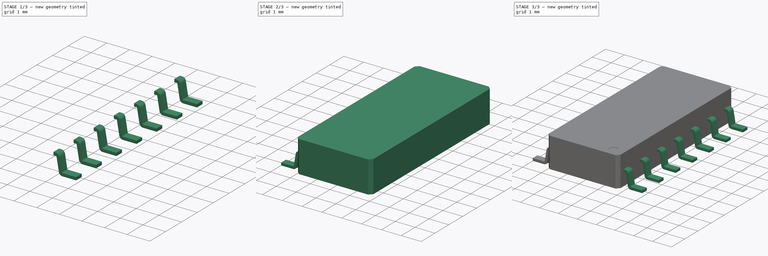
[diagram: build sequence overview — one tinted view per stage of 3, left to right]
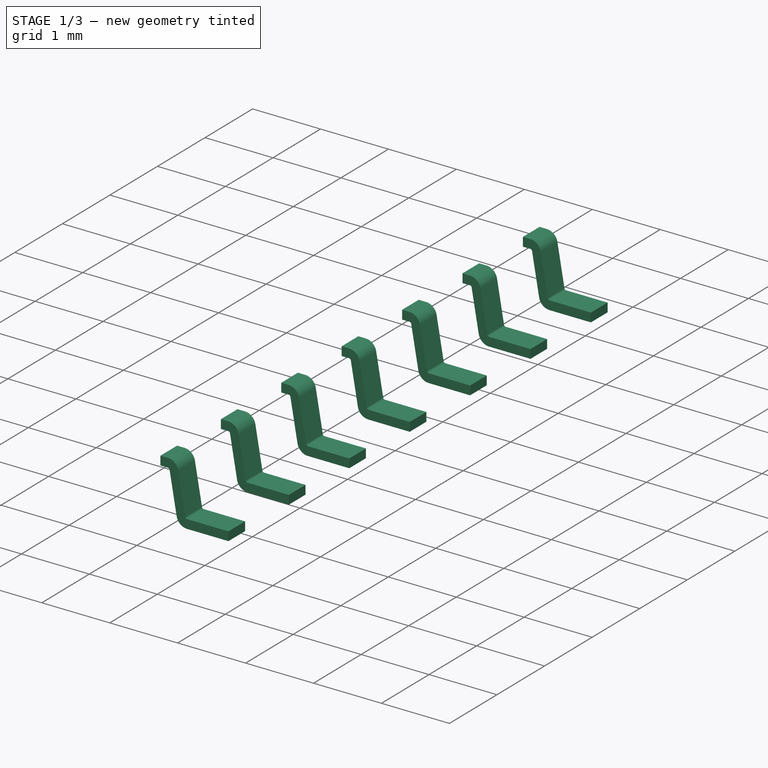
[diagram: stage 1 of 3 — iso view after this stage's code; geometry added in this stage tinted green]
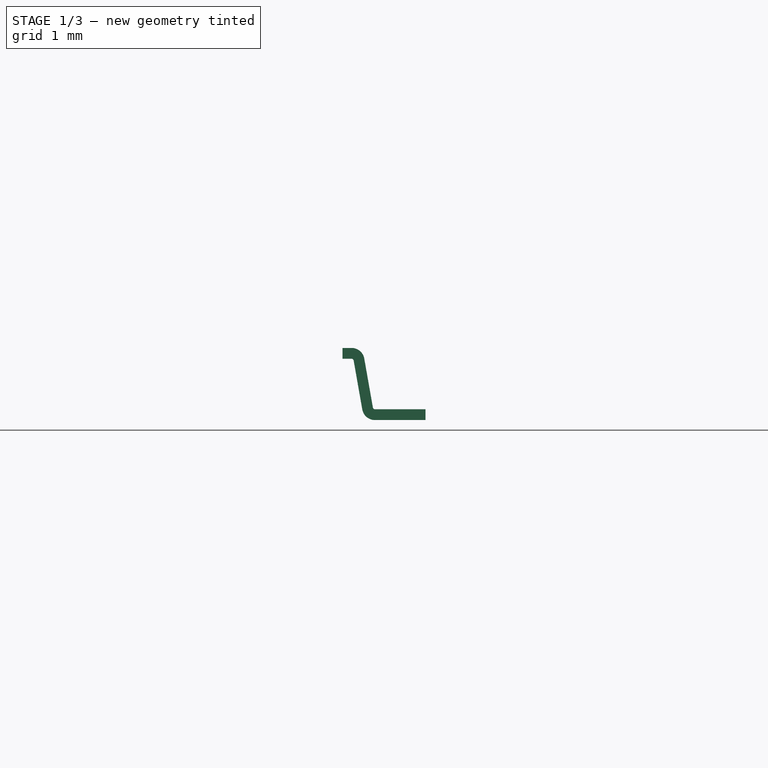
[diagram: stage 1 of 3 — front view after this stage's code; geometry added in this stage tinted green]
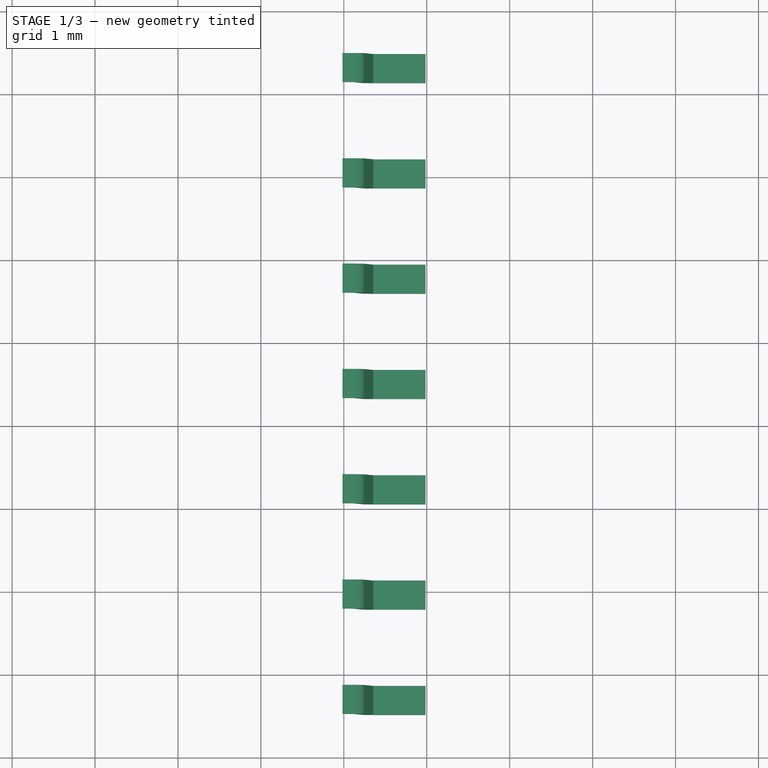
[diagram: stage 1 of 3 — top view after this stage's code; geometry added in this stage tinted green]
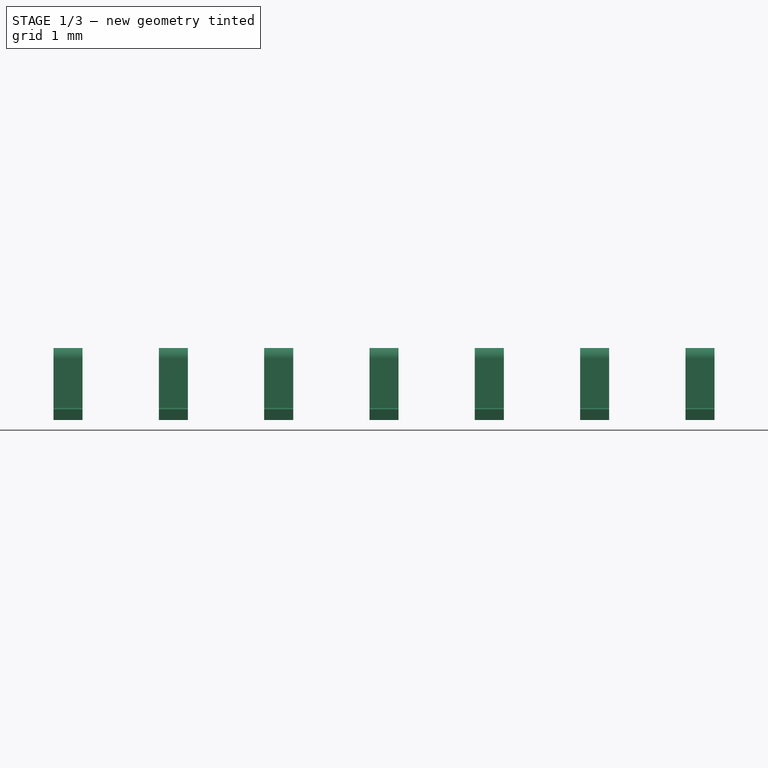
[diagram: stage 1 of 3 — right view after this stage's code; geometry added in this stage tinted green]
FCSTD DOCUMENT  (FreeCAD 0.16R6703 (Git))
Label: 14SOIC-N
License: CreativeCommons Attribution-ShareAlike
LicenseURL: http://creativecommons.org/licenses/by-sa/4.0/
objects: Sketcher::SketchObject×4, Part::FeaturePython×4, PartDesign::Pad×1, PartDesign::Pocket×1, Part::Sweep×1, App::DocumentObjectGroup×1, Part::MultiFuse×1, Part::Feature×1
note: 15 computed .brp shape members not serialized (recipe doc carries the construction recipe); baked Part::Feature solids carry a one-line shape summary decoded from their .brp

FEATURE [Sketcher::SketchObject] Sketch002  label="pin-path-sketch"
  Placement = pos=(0,0,0) rot=(1,0,0;1.5708rad)
  sketch-geometry (5):
    g0: LineSegment StartX=8.02 StartY=0.75 StartZ=0 EndX=8.13 EndY=0.75 EndZ=0
    g1: LineSegment StartX=8.21863 StartY=0.675628 StartZ=0 EndX=8.32282 EndY=0.0847437 EndZ=0
    g2: LineSegment StartX=8.41145 StartY=0.010372 StartZ=0 EndX=9.02145 EndY=0.010372 EndZ=0
    g3: ArcOfCircle CenterX=8.13 CenterY=0.66 CenterZ=0 NormalX=0 NormalY=0 NormalZ=1 Radius=0.09 StartAngle=0.174533 EndAngle=1.5708
    g4: ArcOfCircle CenterX=8.41145 CenterY=0.100372 CenterZ=0 NormalX=0 NormalY=0 NormalZ=1 Radius=0.09 StartAngle=3.31613 EndAngle=4.71239
  constraints (14):
    c: Horizontal(g0)
    c: Horizontal(g2)
    c: Tangent(g0,g3)
    c: Tangent(g1,g3)
    c: Tangent(g1,g4)
    c: Tangent(g2,g4)
    c: Angle(g0,g1) = 1.74533
    c: DistanceX(g-1,g0) = 8.02
    c: DistanceY(g-1,g0) = 0.75
    c: DistanceX(g0) = 0.11
    c: Radius(g3) = 0.09
    c: Equal(g4,g3)
    c: Distance(g1) = 0.6
    c: DistanceX(g2) = 0.61
FEATURE [Sketcher::SketchObject] Sketch003  label="pin-section-sketch"
  Placement = pos=(9.02145,0,0.010372) rot=(0.57735,0.57735,0.57735;2.0944rad)
  sketch-geometry (4):
    g0: LineSegment StartX=-0.175 StartY=0.065 StartZ=0 EndX=0.175 EndY=0.065 EndZ=0
    g1: LineSegment StartX=0.175 StartY=0.065 StartZ=0 EndX=0.175 EndY=-0.065 EndZ=0
    g2: LineSegment StartX=0.175 StartY=-0.065 StartZ=0 EndX=-0.175 EndY=-0.065 EndZ=0
    g3: LineSegment StartX=-0.175 StartY=-0.065 StartZ=0 EndX=-0.175 EndY=0.065 EndZ=0
  constraints (11):
    c: Coincident(g0,g1)
    c: Coincident(g1,g2)
    c: Coincident(g2,g3)
    c: Coincident(g3,g0)
    c: Horizontal(g0)
    c: Horizontal(g2)
    c: Vertical(g1)
    c: Vertical(g3)
    c: DistanceX(g0) = 0.35
    c: DistanceY(g3) = 0.13
    c: Symmetric(g0,g1,g-1)
FEATURE [Part::Sweep] Sweep  label="pin"
  Frenet = true
  Placement = pos=(0.00367852,1.69235,0) rot=(0,0,1;0rad)
  Sections = -> [Sketch003]
  Solid = true
  Spine = -> Sketch002
  Transition = 1
FEATURE [Part::FeaturePython] Array  label="pin-array-1-src"  # Draft array (typed FeaturePython)
  Angle = 360
  ArrayType = 0
  Axis = (0,0,1)
  Base = -> Sweep
  Center = (0,0,0)
  IntervalX = (1,0,0)
  IntervalY = (0,1.27,0)
  IntervalZ = (0,0,1)
  NumberPolar = 1
  NumberX = 1
  NumberY = 7
  NumberZ = 1
  Placement = pos=(-3.04,0,0) rot=(0,0,1;0rad)
FEATURE [App::DocumentObjectGroup] Group001  label="src"
  Group = -> [Pad,Pocket,Sketch002,Array]
FEATURE [Part::FeaturePython] Clone004  label="pin-array-1"  # Draft clone (typed FeaturePython)
  Objects = -> [Array]
  Placement = pos=(-3.04,0,0) rot=(0,0,1;0rad)
  Scale = (1,1,1)
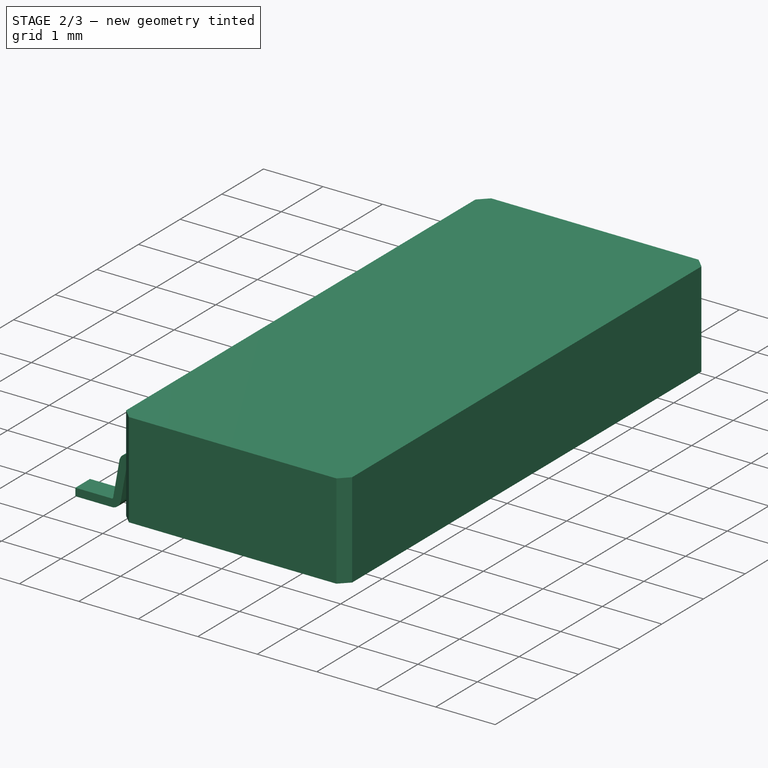
[diagram: stage 2 of 3 — iso view after this stage's code; geometry added in this stage tinted green]
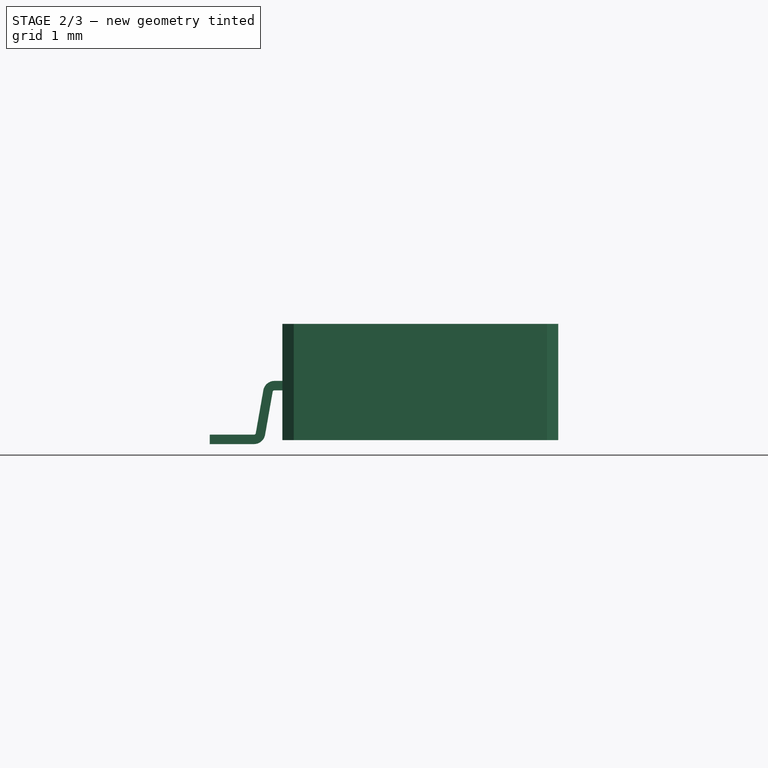
[diagram: stage 2 of 3 — front view after this stage's code; geometry added in this stage tinted green]
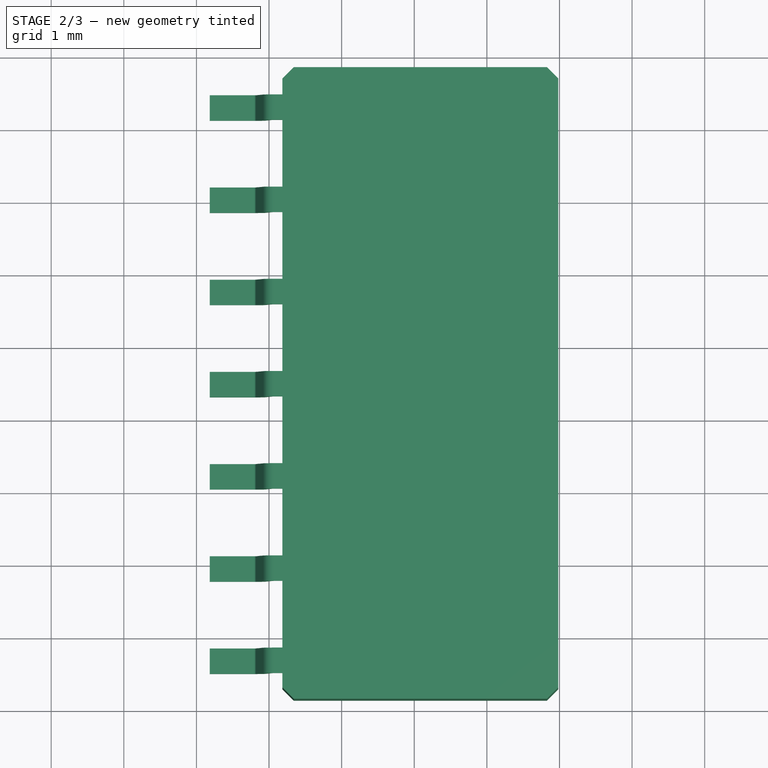
[diagram: stage 2 of 3 — top view after this stage's code; geometry added in this stage tinted green]
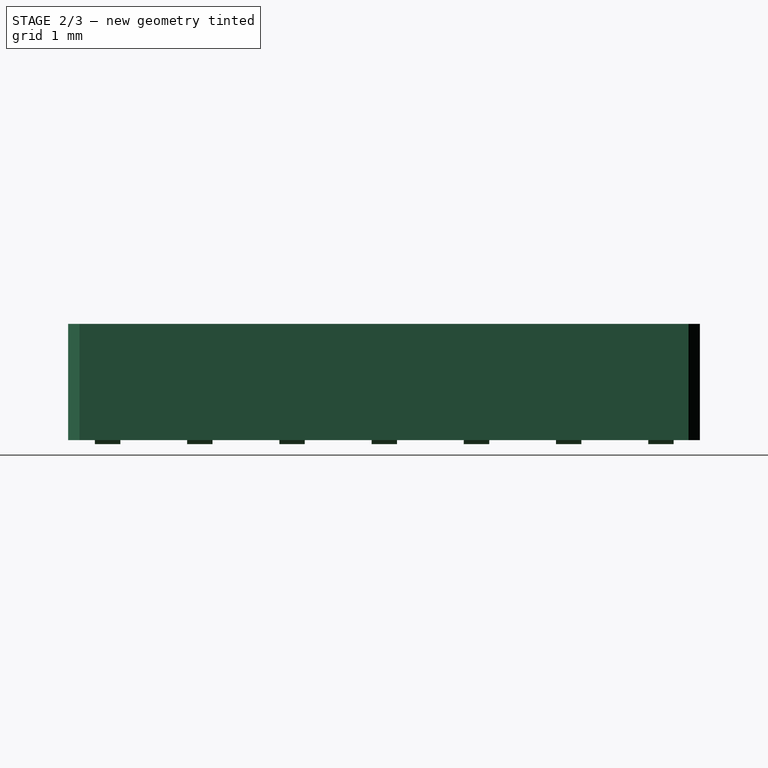
[diagram: stage 2 of 3 — right view after this stage's code; geometry added in this stage tinted green]
FEATURE [Sketcher::SketchObject] Sketch  label="main-body-sketch"
  sketch-geometry (10):
    g0: LineSegment StartX=1.34 StartY=9.8438 StartZ=0 EndX=4.8276 EndY=9.8438 EndZ=0
    g1: LineSegment StartX=4.8276 StartY=9.8438 StartZ=0 EndX=4.9838 EndY=9.6876 EndZ=0
    g2: LineSegment StartX=4.9838 StartY=9.6876 StartZ=0 EndX=4.9838 EndY=1.3 EndZ=0
    g3: LineSegment StartX=4.9838 StartY=1.3 StartZ=0 EndX=4.8276 EndY=1.1438 EndZ=0
    g4: LineSegment StartX=4.8276 StartY=1.1438 StartZ=0 EndX=1.34 EndY=1.1438 EndZ=0
    g5: LineSegment StartX=1.34 StartY=1.1438 StartZ=0 EndX=1.1838 EndY=1.3 EndZ=0
    g6: LineSegment StartX=1.34 StartY=9.8438 StartZ=0 EndX=1.1838 EndY=9.6876 EndZ=0
    g7: LineSegment StartX=1.1838 StartY=9.6876 StartZ=0 EndX=1.1838 EndY=1.3 EndZ=0
    g8: LineSegment [constr] StartX=1.1838 StartY=9.6876 StartZ=0 EndX=4.9838 EndY=9.6876 EndZ=0
    g9: LineSegment [constr] StartX=1.34 StartY=9.8438 StartZ=0 EndX=1.34 EndY=1.1438 EndZ=0
  constraints (28):
    c: Horizontal(g0)
    c: Coincident(g0,g1)
    c: Coincident(g1,g2)
    c: Vertical(g2)
    c: Coincident(g2,g3)
    c: Coincident(g3,g4)
    c: Horizontal(g4)
    c: Coincident(g4,g5)
    c: Coincident(g0,g6)
    c: Coincident(g6,g7)
    c: Coincident(g7,g5)
    c: Vertical(g7)
    c: Equal(g7,g2)
    c: Horizontal(g8)
    c: Coincident(g8,g6)
    c: Coincident(g8,g1)
    c: Vertical(g9)
    c: Coincident(g9,g0)
    c: Coincident(g9,g4)
    c: Angle(g8,g6) = 0.785398
    c: Equal(g6,g3)
    c: Parallel(g6,g3)
    c: DistanceY(g9) = -8.7
    c: DistanceX(g-1,g4) = 1.34
    c: DistanceY(g-1,g5) = 1.3
    c: Equal(g6,g1)
    c: Distance(g6) = 0.220902
    c: DistanceX(g8) = 3.8
FEATURE [PartDesign::Pad] Pad  label="main-body"
  Length = 1.6
  Length2 = 100
  Sketch = -> Sketch
  Type = 0
FEATURE [Part::FeaturePython] Clone  label="pin-array-2"  # Draft clone (typed FeaturePython)
  Objects = -> [Clone004]
  Placement = pos=(9.208,11,0) rot=(0,0,1;3.14159rad)
  Scale = (1,1,1)
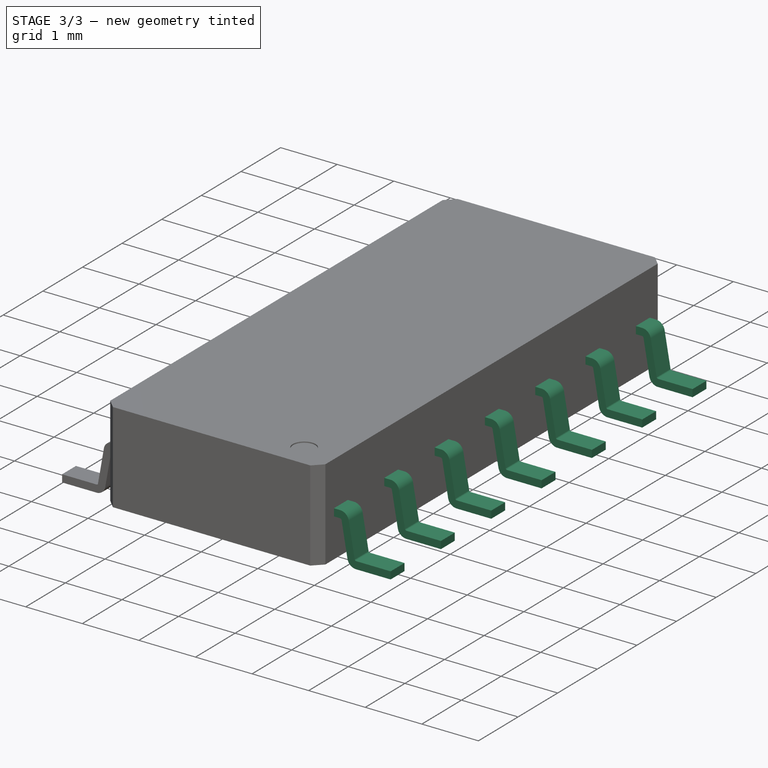
[diagram: stage 3 of 3 — iso view after this stage's code; geometry added in this stage tinted green]
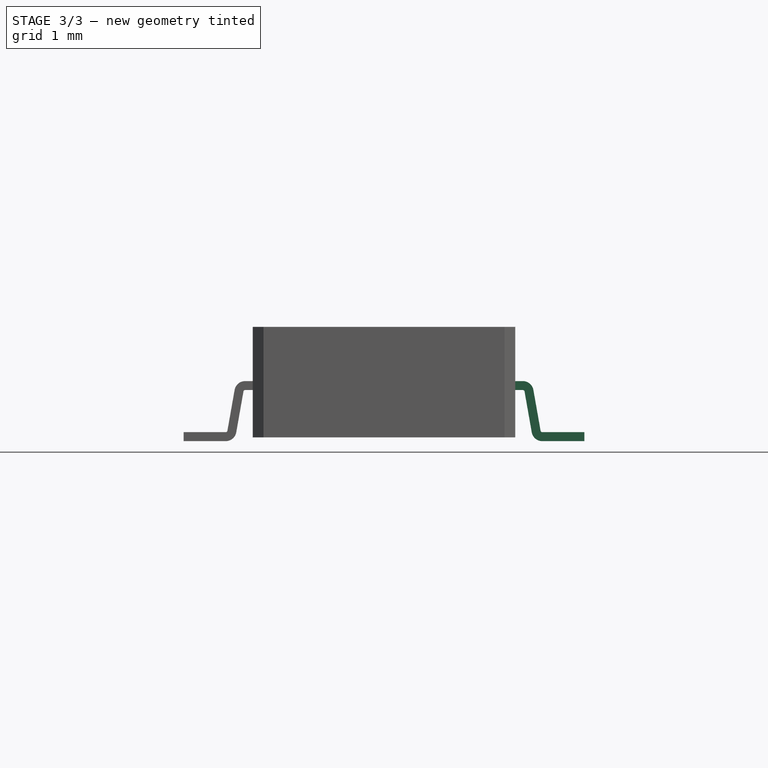
[diagram: stage 3 of 3 — front view after this stage's code; geometry added in this stage tinted green]
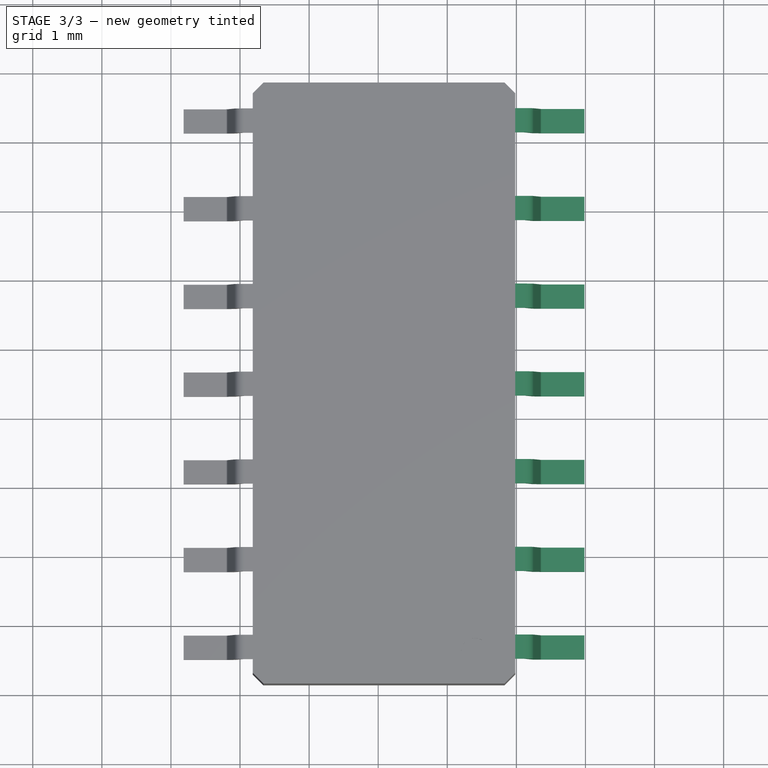
[diagram: stage 3 of 3 — top view after this stage's code; geometry added in this stage tinted green]
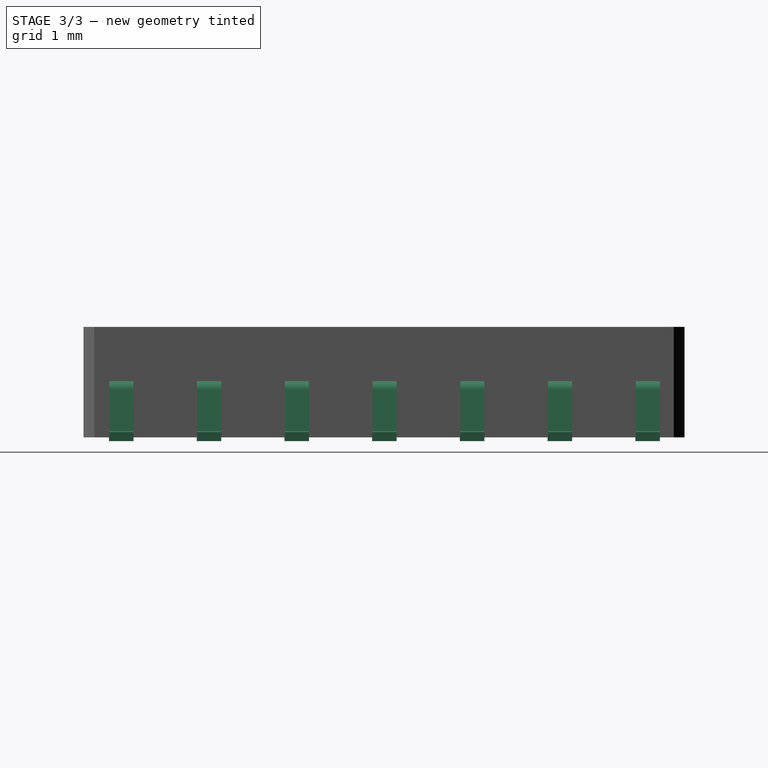
[diagram: stage 3 of 3 — right view after this stage's code; geometry added in this stage tinted green]
FEATURE [Sketcher::SketchObject] Sketch001  label="top-circle-mark-sketch"
  Placement = pos=(0,0,1.6) rot=(0,0,1;0rad)
  Support = -> Pad [Face10]
  sketch-geometry (1):
    g0: Circle CenterX=4.4 CenterY=1.6 CenterZ=0 NormalX=0 NormalY=0 NormalZ=1 Radius=0.2
  constraints (3):
    c: Radius(g0) = 0.2
    c: DistanceY(g-1,g0) = 1.6
    c: DistanceX(g0) = 4.4
FEATURE [PartDesign::Pocket] Pocket  label="top-circle-mark"
  Length = 0.02
  Sketch = -> Sketch001
  Type = 0
FEATURE [Part::FeaturePython] Clone003  label="ic-body"  # Draft clone (typed FeaturePython)
  Objects = -> [Pocket]
  Scale = (1,1,1)
FEATURE [Part::MultiFuse] Fusion  label="SOIC-N"
  Shapes = -> [Clone,Clone003,Clone004]
FEATURE [Part::Feature] Fusion001  label="14SOIC"
  shape: bbox 5.802 x 8.7 x 1.655 mm, 194 faces (baked)
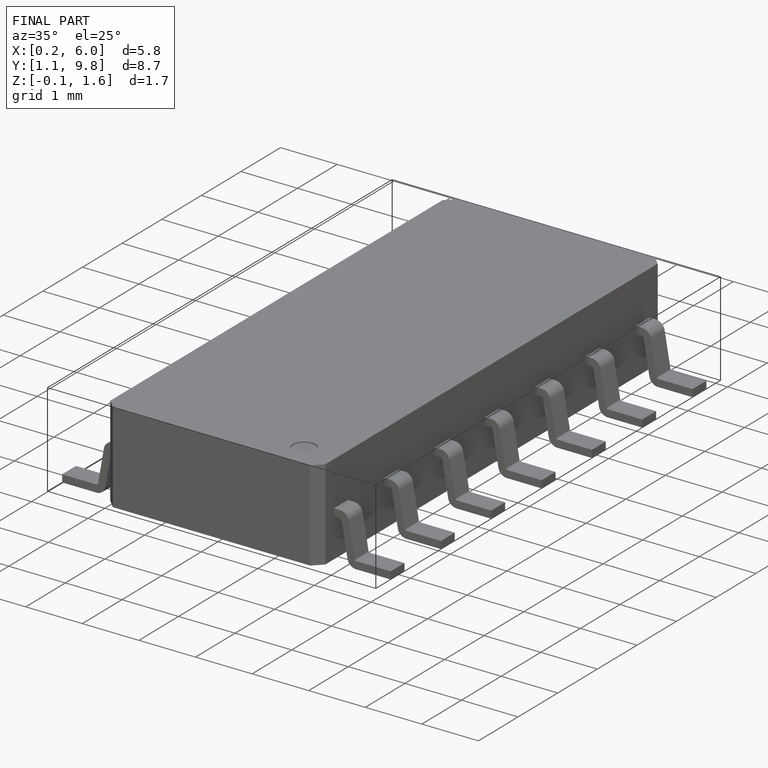
[diagram: finished part — iso view with bounding-box wireframe]
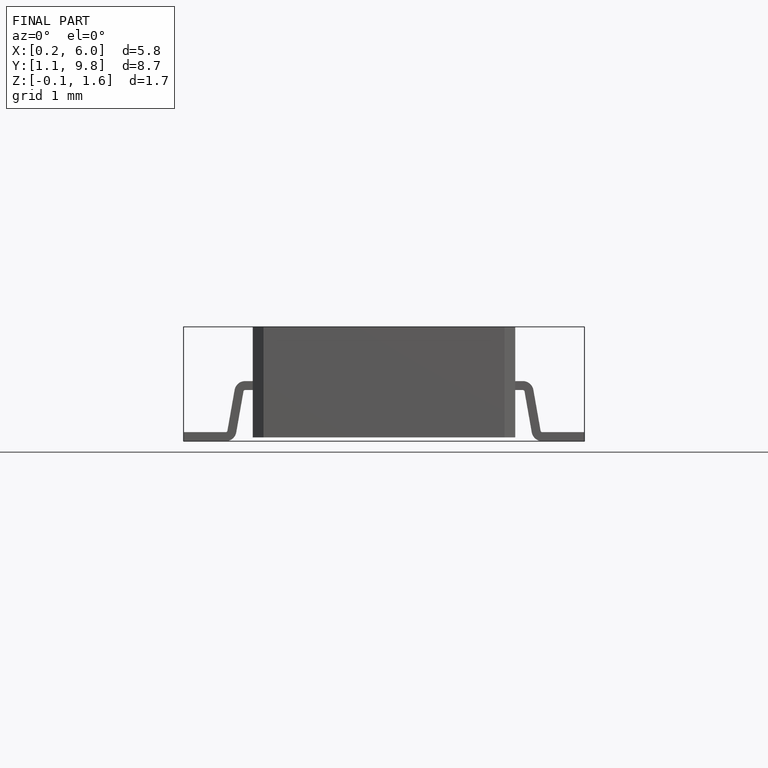
[diagram: finished part — front view with bounding-box wireframe]
